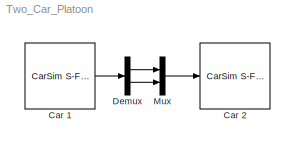
MODEL Two_Car_Platoon
KIND model
BLOCK [Reference] Car 1  REF=Solver_SF/CarSim S-Function
  Ports = [0, 1]
  Priority = 1
  Run_RTs = off
  SID = 24
  SIMFILE = Platoon_Car_1.sim
  SourceBlock = Solver_SF/CarSim S-Function
  SourceType = Vehicle math model library
  StopMode_ind = Vehicle Model
  vs_state_ind = Run
BLOCK [Reference] Car 2  REF=Solver_SF/CarSim S-Function
  Ports = [1]
  Priority = 1
  Run_RTs = off
  SID = 57
  SIMFILE = Platoon_Car_2.sim
  SourceBlock = Solver_SF/CarSim S-Function
  SourceType = Vehicle math model library
  StopMode_ind = Vehicle Model
  vs_state_ind = Run
BLOCK [Demux] Demux
  DisplayOption = bar
  Outputs = 2
  Ports = [1, 2]
  SID = 61
BLOCK [Mux] Mux
  DisplayOption = bar
  Inputs = 2
  Ports = [2, 1]
  SID = 62
LINE Car 1:1 -> Demux:1
LINE Demux:1 -> Mux:1
LINE Demux:2 -> Mux:2
LINE Mux:1 -> Car 2:1
